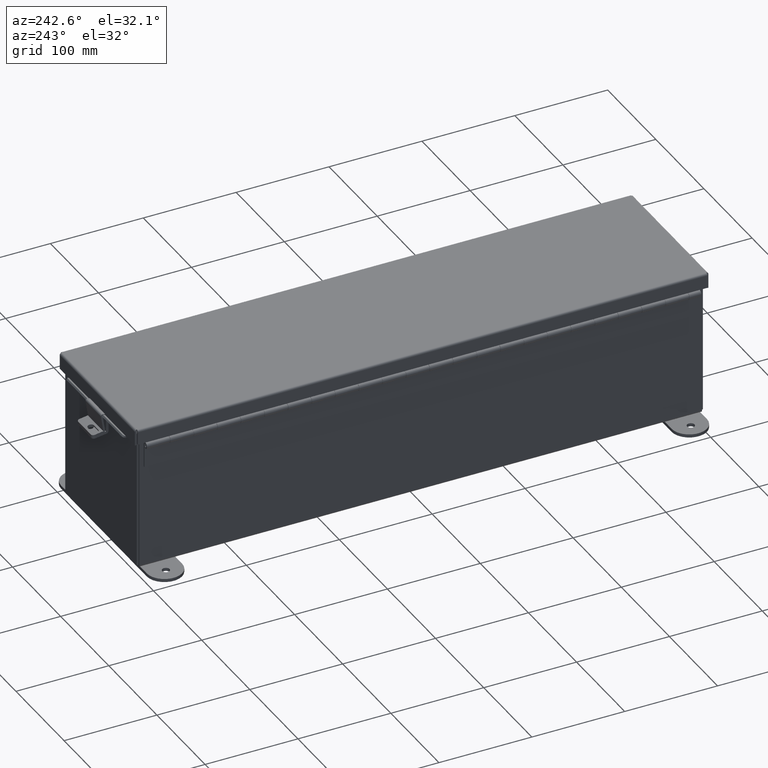
[diagram: clean part render]
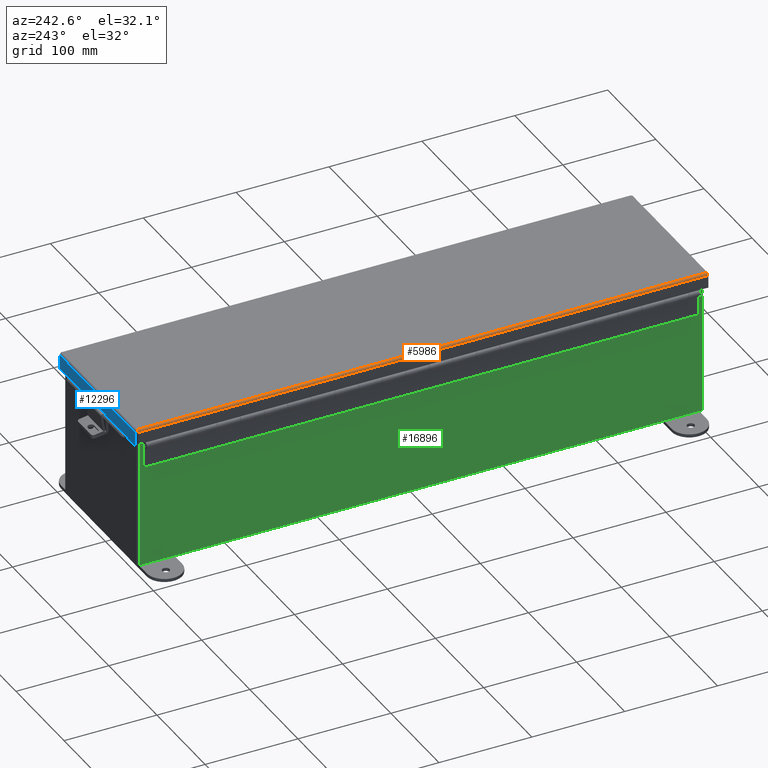
[diagram: same view with three faces highlighted in distinct colors, each labeled with its STEP entity id]
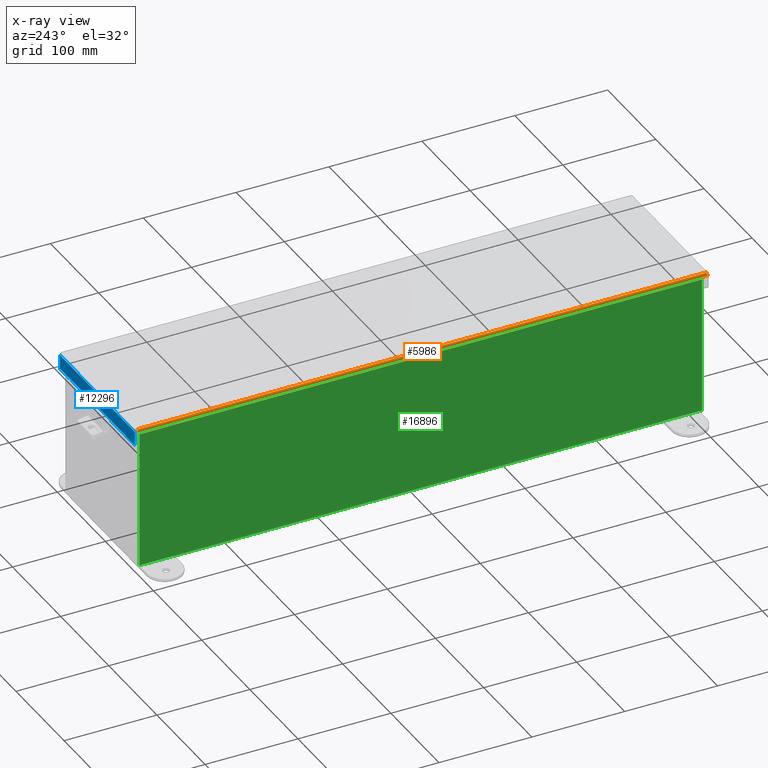
[diagram: x-ray of the same camera — body ghosted, the three highlighted faces saturated]
A machine part, auxiliary view with three faces highlighted in distinct colors.
The next image is the same camera in x-ray (body ghosted, the three faces saturated) — at least one of them is partly hidden behind the body in this view.
Their STEP definitions:

[orange] entity #5986 — the highlighted cylindrical surface (edge-blend (fillet) strip) has radius 2.2276 mm, axis along (0, 1, 0).
#235 = CARTESIAN_POINT ( 'NONE',  ( 3.156250000000021800, -12.07398485450581100, 0.001520096845005352400 ) ) ;
#604 = CARTESIAN_POINT ( 'NONE',  ( 3.156250000000021800, 12.07447893218811300, 0.01300000000000010700 ) ) ;
#890 = CARTESIAN_POINT ( 'NONE',  ( 3.112717384578551200, 12.07052631072935800, -0.06363106625866846200 ) ) ;
#1307 = VECTOR ( 'NONE', #6125, 39.37007874015748100 ) ;
#1649 = DIRECTION ( 'NONE',  ( 5.768659154690247000E-030, 1.000000000000000000, 2.085551018178050000E-029 ) ) ;
#2370 = VERTEX_POINT ( 'NONE', #604 ) ;
#2576 = CARTESIAN_POINT ( 'NONE',  ( 3.156250000000023100, 12.07398485450576900, 0.001520096845008739500 ) ) ;
#2650 = CARTESIAN_POINT ( 'NONE',  ( 3.080029903155014900, 12.06904407768232400, -0.07470000000000033600 ) ) ;
#2978 = CYLINDRICAL_SURFACE ( 'NONE', #19751, 0.08770000000000026400 ) ;
#3386 = DIRECTION ( 'NONE',  ( 1.000000000000000000, 0.0000000000000000000, -3.966747639032868000E-015 ) ) ;
#3682 = CARTESIAN_POINT ( 'NONE',  ( 3.080029903155014900, -12.06904407768236700, -0.07470000000000033600 ) ) ;
#4046 = FACE_OUTER_BOUND ( 'NONE', #17751, .T. ) ;
#4077 = ORIENTED_EDGE ( 'NONE', *, *, #7547, .F. ) ;
#4397 = CARTESIAN_POINT ( 'NONE',  ( 3.156250000000021800, -12.15625000000002100, 0.01299999999999901400 ) ) ;
#5574 = CARTESIAN_POINT ( 'NONE',  ( 3.068550000000011200, 12.06854999999997700, -0.07469999999999907300 ) ) ;
#5932 = CARTESIAN_POINT ( 'NONE',  ( 3.156250000000021800, -12.07447893218815500, 0.01300000000000010700 ) ) ;
#5986 = ADVANCED_FACE ( 'NONE', ( #4046 ), #2978, .T. ) ;
#6125 = DIRECTION ( 'NONE',  ( -5.845301833690820500E-030, -1.000000000000000000, -2.247278555201480100E-017 ) ) ;
#7148 = CARTESIAN_POINT ( 'NONE',  ( 3.112717384578548500, -12.07052631072940200, -0.06363106625866903100 ) ) ;
#7547 = EDGE_CURVE ( 'NONE', #2370, #19665, #21934, .T. ) ;
#8891 = CARTESIAN_POINT ( 'NONE',  ( 3.138680782078340200, -12.07200854377643400, -0.04089574734180119500 ) ) ;
#9173 = VERTEX_POINT ( 'NONE', #13062 ) ;
#9514 = CARTESIAN_POINT ( 'NONE',  ( 3.145181066258690100, 12.07250262145873300, -0.03116738457852710400 ) ) ;
#9720 = CARTESIAN_POINT ( 'NONE',  ( 3.068550000000011200, 12.07447893218811300, -0.07469999999999907300 ) ) ;
#10135 = VECTOR ( 'NONE', #20089, 39.37007874015748100 ) ;
#10514 = LINE ( 'NONE', #4397, #1307 ) ;
#10651 = CARTESIAN_POINT ( 'NONE',  ( 3.153967403743832300, -12.07349077682346600, -0.009955289458310636800 ) ) ;
#11264 = CARTESIAN_POINT ( 'NONE',  ( 3.122445747341822600, 12.07102038841170200, -0.05713078207832027200 ) ) ;
#12381 = CARTESIAN_POINT ( 'NONE',  ( 3.156250000000021800, -12.07447893218815500, 0.01300000000000010700 ) ) ;
#13010 = CARTESIAN_POINT ( 'NONE',  ( 3.091505289458331300, 12.06953815536466700, -0.07241740374381157300 ) ) ;
#13062 = CARTESIAN_POINT ( 'NONE',  ( 3.068550000000011700, -12.06855000000002100, -0.07470000000000015500 ) ) ;
#14501 = VERTEX_POINT ( 'NONE', #5932 ) ;
#14669 = CARTESIAN_POINT ( 'NONE',  ( 3.156250000000021800, 12.07447893218811300, 0.01300000000000010700 ) ) ;
#14742 = CARTESIAN_POINT ( 'NONE',  ( 3.068550000000011200, 12.06854999999997700, -0.07469999999999907300 ) ) ;
#15230 = ORIENTED_EDGE ( 'NONE', *, *, #20119, .F. ) ;
#15264 = ORIENTED_EDGE ( 'NONE', *, *, #20908, .T. ) ;
#16400 = EDGE_CURVE ( 'NONE', #19665, #9173, #19342, .T. ) ;
#17511 = CARTESIAN_POINT ( 'NONE',  ( 3.091505289458331300, -12.06953815536471500, -0.07241740374381168400 ) ) ;
#17751 = EDGE_LOOP ( 'NONE', ( #21998, #4077, #15264, #15230 ) ) ;
#19192 = CARTESIAN_POINT ( 'NONE',  ( 3.068550000000011700, -12.06855000000002100, -0.07470000000000015500 ) ) ;
#19266 = CARTESIAN_POINT ( 'NONE',  ( 3.122445747341821200, -12.07102038841174600, -0.05713078207832120200 ) ) ;
#19342 = LINE ( 'NONE', #9720, #10135 ) ;
#19665 = VERTEX_POINT ( 'NONE', #5574 ) ;
#19751 = AXIS2_PLACEMENT_3D ( 'NONE', #22391, #1649, #3386 ) ;
#19884 = CARTESIAN_POINT ( 'NONE',  ( 3.153967403743833700, 12.07349077682342500, -0.009955289458307653100 ) ) ;
#20089 = DIRECTION ( 'NONE',  ( -5.768659154690247000E-030, -1.000000000000000000, -2.085551018178049700E-029 ) ) ;
#20119 = EDGE_CURVE ( 'NONE', #9173, #14501, #20254, .T. ) ;
#20254 = B_SPLINE_CURVE_WITH_KNOTS ( 'NONE', 3,
 ( #19192, #3682, #17511, #7148, #19266, #8891, #21010, #10651, #235, #12381 ),
 .UNSPECIFIED., .F., .F.,
 ( 4, 2, 2, 2, 4 ),
 ( 0.0000000000000000000, 0.2500000000000000000, 0.5000000000000000000, 0.7500000000000000000, 1.000000000000000000 ),
 .UNSPECIFIED. ) ;
#20908 = EDGE_CURVE ( 'NONE', #2370, #14501, #10514, .T. ) ;
#21010 = CARTESIAN_POINT ( 'NONE',  ( 3.145181066258689700, -12.07250262145877800, -0.03116738457852925200 ) ) ;
#21630 = CARTESIAN_POINT ( 'NONE',  ( 3.138680782078343800, 12.07200854377638800, -0.04089574734179951500 ) ) ;
#21934 = B_SPLINE_CURVE_WITH_KNOTS ( 'NONE', 3,
 ( #14669, #2576, #19884, #9514, #21630, #11264, #890, #13010, #2650, #14742 ),
 .UNSPECIFIED., .F., .F.,
 ( 4, 2, 2, 2, 4 ),
 ( 0.0000000000000000000, 0.2499999999999998900, 0.4999999999999997800, 0.7499999999999998900, 1.000000000000000000 ),
 .UNSPECIFIED. ) ;
#21998 = ORIENTED_EDGE ( 'NONE', *, *, #16400, .F. ) ;
#22391 = CARTESIAN_POINT ( 'NONE',  ( 3.068550000000021400, 12.07447893218811300, 0.01300000000000010700 ) ) ;

[blue] entity #12296 — the highlighted planar face has unit normal (-0, -1, -0).
#263 = PLANE ( 'NONE',  #9715 ) ;
#473 = LINE ( 'NONE', #10496, #4558 ) ;
#661 = LINE ( 'NONE', #2677, #5274 ) ;
#916 = DIRECTION ( 'NONE',  ( 1.000000000000000000, 5.767251834364279800E-030, 1.081919997490687600E-017 ) ) ;
#1012 = CARTESIAN_POINT ( 'NONE',  ( -2.324478932188143200, 12.15624999999997700, 0.5967115427318815400 ) ) ;
#1226 = CARTESIAN_POINT ( 'NONE',  ( -3.074478932188137800, 12.15624999999998000, 0.6122999999999994000 ) ) ;
#1332 = LINE ( 'NONE', #16548, #9443 ) ;
#1414 = CARTESIAN_POINT ( 'NONE',  ( 2.324478932188144900, 12.15624999999998000, 0.6122999999999994000 ) ) ;
#1858 = EDGE_CURVE ( 'NONE', #6198, #16233, #4201, .T. ) ;
#2057 = DIRECTION ( 'NONE',  ( -1.577721810442017300E-030, -3.569293475308533200E-015, -1.000000000000000000 ) ) ;
#2396 = CARTESIAN_POINT ( 'NONE',  ( -3.074478932188132500, 12.15624999999997700, 0.01300000000000010700 ) ) ;
#2677 = CARTESIAN_POINT ( 'NONE',  ( 2.324478932188144900, 12.15624999999998000, 0.6123000000000005100 ) ) ;
#2755 = LINE ( 'NONE', #9807, #11401 ) ;
#3476 = EDGE_CURVE ( 'NONE', #20969, #15159, #15006, .T. ) ;
#3900 = CARTESIAN_POINT ( 'NONE',  ( 3.156250000000020900, 12.15624999999997700, 0.01300000000000010700 ) ) ;
#4201 = LINE ( 'NONE', #12567, #4754 ) ;
#4493 = DIRECTION ( 'NONE',  ( 1.577721810442017300E-030, 1.401985044024248200E-013, 1.000000000000000000 ) ) ;
#4528 = DIRECTION ( 'NONE',  ( -1.000000000000000000, -5.768659154690151100E-030, 1.577721810442017300E-030 ) ) ;
#4558 = VECTOR ( 'NONE', #7065, 39.37007874015748100 ) ;
#4574 = VECTOR ( 'NONE', #5627, 39.37007874015748100 ) ;
#4754 = VECTOR ( 'NONE', #8090, 39.37007874015748100 ) ;
#5274 = VECTOR ( 'NONE', #14778, 39.37007874015748100 ) ;
#5627 = DIRECTION ( 'NONE',  ( 1.000000000000000000, 5.719355348113837800E-030, -1.577721810442017300E-030 ) ) ;
#6198 = VERTEX_POINT ( 'NONE', #21163 ) ;
#6733 = FACE_OUTER_BOUND ( 'NONE', #20697, .T. ) ;
#6941 = LINE ( 'NONE', #11290, #17228 ) ;
#7065 = DIRECTION ( 'NONE',  ( 1.577721810442017300E-030, 3.569293475308533200E-015, 1.000000000000000000 ) ) ;
#7669 = CARTESIAN_POINT ( 'NONE',  ( -2.324478932188146700, 12.15624999999998000, 0.6123000000000005100 ) ) ;
#8090 = DIRECTION ( 'NONE',  ( 1.577721810442017300E-030, 3.569293475308533200E-015, 1.000000000000000000 ) ) ;
#8322 = ORIENTED_EDGE ( 'NONE', *, *, #12596, .F. ) ;
#8887 = VERTEX_POINT ( 'NONE', #1414 ) ;
#9443 = VECTOR ( 'NONE', #4528, 39.37007874015748100 ) ;
#9715 = AXIS2_PLACEMENT_3D ( 'NONE', #19296, #12402, #2057 ) ;
#9807 = CARTESIAN_POINT ( 'NONE',  ( -6.402768735150616900E-018, 12.15624999999998000, 0.6122999999999994000 ) ) ;
#10496 = CARTESIAN_POINT ( 'NONE',  ( -3.074478932188133000, 12.15624999999997700, -4.370956789862821100E-014 ) ) ;
#11290 = CARTESIAN_POINT ( 'NONE',  ( -6.402768735150616900E-018, 12.15624999999998000, 0.6122999999999994000 ) ) ;
#11341 = EDGE_CURVE ( 'NONE', #17108, #15159, #2755, .T. ) ;
#11401 = VECTOR ( 'NONE', #13285, 39.37007874015748100 ) ;
#11404 = ORIENTED_EDGE ( 'NONE', *, *, #11341, .T. ) ;
#12069 = CARTESIAN_POINT ( 'NONE',  ( 2.324478932188147600, 12.15624999999998000, 0.5967115427318815400 ) ) ;
#12296 = ADVANCED_FACE ( 'NONE', ( #6733 ), #263, .F. ) ;
#12402 = DIRECTION ( 'NONE',  ( -5.798395978055771900E-030, -1.000000000000000000, 3.569293475308533200E-015 ) ) ;
#12567 = CARTESIAN_POINT ( 'NONE',  ( 3.074478932188157400, 12.15624999999997700, 0.0000000000000000000 ) ) ;
#12596 = EDGE_CURVE ( 'NONE', #16603, #20969, #1332, .T. ) ;
#12907 = EDGE_CURVE ( 'NONE', #18112, #17108, #473, .T. ) ;
#13285 = DIRECTION ( 'NONE',  ( 1.000000000000000000, 5.767251834364279800E-030, 1.081919997490687600E-017 ) ) ;
#13967 = EDGE_CURVE ( 'NONE', #8887, #16233, #6941, .T. ) ;
#14613 = ORIENTED_EDGE ( 'NONE', *, *, #12907, .T. ) ;
#14778 = DIRECTION ( 'NONE',  ( 1.752481305030332700E-014, -1.401985044024260600E-013, -1.000000000000000000 ) ) ;
#15006 = LINE ( 'NONE', #1012, #19060 ) ;
#15159 = VERTEX_POINT ( 'NONE', #7669 ) ;
#15749 = ORIENTED_EDGE ( 'NONE', *, *, #13967, .T. ) ;
#16148 = CARTESIAN_POINT ( 'NONE',  ( 3.074478932188152500, 12.15624999999998000, 0.6123000000000005100 ) ) ;
#16233 = VERTEX_POINT ( 'NONE', #16148 ) ;
#16548 = CARTESIAN_POINT ( 'NONE',  ( 2.324478932188147600, 12.15624999999997700, 0.5967115427318815400 ) ) ;
#16603 = VERTEX_POINT ( 'NONE', #12069 ) ;
#16986 = EDGE_CURVE ( 'NONE', #8887, #16603, #661, .T. ) ;
#17108 = VERTEX_POINT ( 'NONE', #1226 ) ;
#17228 = VECTOR ( 'NONE', #916, 39.37007874015748100 ) ;
#18112 = VERTEX_POINT ( 'NONE', #2396 ) ;
#18361 = LINE ( 'NONE', #3900, #4574 ) ;
#19060 = VECTOR ( 'NONE', #4493, 39.37007874015748100 ) ;
#19178 = ORIENTED_EDGE ( 'NONE', *, *, #22475, .F. ) ;
#19296 = CARTESIAN_POINT ( 'NONE',  ( 0.0000000000000000000, 12.15624999999997700, -4.370956789862821100E-014 ) ) ;
#20059 = CARTESIAN_POINT ( 'NONE',  ( -2.324478932188143200, 12.15624999999998000, 0.5967115427318815400 ) ) ;
#20634 = ORIENTED_EDGE ( 'NONE', *, *, #1858, .F. ) ;
#20697 = EDGE_LOOP ( 'NONE', ( #21963, #15749, #20634, #19178, #14613, #11404, #21257, #8322 ) ) ;
#20969 = VERTEX_POINT ( 'NONE', #20059 ) ;
#21163 = CARTESIAN_POINT ( 'NONE',  ( 3.074478932188157400, 12.15624999999997700, 0.01300000000000010700 ) ) ;
#21257 = ORIENTED_EDGE ( 'NONE', *, *, #3476, .F. ) ;
#21963 = ORIENTED_EDGE ( 'NONE', *, *, #16986, .F. ) ;
#22475 = EDGE_CURVE ( 'NONE', #18112, #6198, #18361, .T. ) ;

[green] entity #16896 — the highlighted planar face has unit normal (1, 0, 0).
#74 = ORIENTED_EDGE ( 'NONE', *, *, #8805, .T. ) ;
#389 = DIRECTION ( 'NONE',  ( -2.374631997337943600E-031, 1.000000000000000000, 6.872400678383597100E-017 ) ) ;
#688 = PLANE ( 'NONE',  #14779 ) ;
#933 = ORIENTED_EDGE ( 'NONE', *, *, #18045, .F. ) ;
#1311 = VERTEX_POINT ( 'NONE', #13166 ) ;
#1609 = VERTEX_POINT ( 'NONE', #7179 ) ;
#1876 = LINE ( 'NONE', #19963, #6455 ) ;
#1988 = LINE ( 'NONE', #12518, #19852 ) ;
#2544 = LINE ( 'NONE', #15920, #15783 ) ;
#3624 = LINE ( 'NONE', #13295, #13382 ) ;
#5890 = DIRECTION ( 'NONE',  ( 1.000000000000000000, 0.0000000000000000000, 3.455316574900958600E-015 ) ) ;
#6455 = VECTOR ( 'NONE', #21716, 39.37007874015748100 ) ;
#6984 = VERTEX_POINT ( 'NONE', #11218 ) ;
#7071 = ORIENTED_EDGE ( 'NONE', *, *, #12516, .T. ) ;
#7179 = CARTESIAN_POINT ( 'NONE',  ( -3.000000000000000900, -11.92529999999999600, 0.01299999999999820400 ) ) ;
#8805 = EDGE_CURVE ( 'NONE', #6984, #1311, #3624, .T. ) ;
#10603 = VERTEX_POINT ( 'NONE', #21415 ) ;
#10976 = FACE_OUTER_BOUND ( 'NONE', #20959, .T. ) ;
#11218 = CARTESIAN_POINT ( 'NONE',  ( -3.000000000000020900, 11.92529999999999600, 5.837599999999999200 ) ) ;
#11483 = DIRECTION ( 'NONE',  ( 3.455316574900958600E-015, 0.0000000000000000000, -1.000000000000000000 ) ) ;
#12516 = EDGE_CURVE ( 'NONE', #1609, #10603, #1876, .T. ) ;
#12518 = CARTESIAN_POINT ( 'NONE',  ( -3.000000000000000900, 11.92529999999999600, 0.01299999999999984300 ) ) ;
#13166 = CARTESIAN_POINT ( 'NONE',  ( -3.000000000000000900, 11.92529999999999600, 0.01300000000000001300 ) ) ;
#13295 = CARTESIAN_POINT ( 'NONE',  ( -3.000000000000000900, 11.92529999999999600, -1.062859610035002400E-014 ) ) ;
#13382 = VECTOR ( 'NONE', #11483, 39.37007874015748100 ) ;
#14779 = AXIS2_PLACEMENT_3D ( 'NONE', #16278, #5890, #18006 ) ;
#15783 = VECTOR ( 'NONE', #17659, 39.37007874015748100 ) ;
#15920 = CARTESIAN_POINT ( 'NONE',  ( -3.000000000000020900, -11.92529999999999600, 5.837599999999999200 ) ) ;
#16278 = CARTESIAN_POINT ( 'NONE',  ( -3.000000000000000900, 0.0000000000000000000, -1.062859610035002400E-014 ) ) ;
#16896 = ADVANCED_FACE ( 'NONE', ( #10976 ), #688, .F. ) ;
#17659 = DIRECTION ( 'NONE',  ( 0.0000000000000000000, 1.000000000000000000, 0.0000000000000000000 ) ) ;
#18006 = DIRECTION ( 'NONE',  ( 3.455316574900958600E-015, 0.0000000000000000000, -1.000000000000000000 ) ) ;
#18011 = EDGE_CURVE ( 'NONE', #10603, #6984, #2544, .T. ) ;
#18045 = EDGE_CURVE ( 'NONE', #1609, #1311, #1988, .T. ) ;
#18566 = ORIENTED_EDGE ( 'NONE', *, *, #18011, .T. ) ;
#19852 = VECTOR ( 'NONE', #389, 39.37007874015748100 ) ;
#19963 = CARTESIAN_POINT ( 'NONE',  ( -3.000000000000000900, -11.92530000000000000, -6.172269060685194900E-015 ) ) ;
#20959 = EDGE_LOOP ( 'NONE', ( #18566, #74, #933, #7071 ) ) ;
#21415 = CARTESIAN_POINT ( 'NONE',  ( -3.000000000000020900, -11.92529999999999500, 5.837599999999999200 ) ) ;
#21716 = DIRECTION ( 'NONE',  ( -3.455316574900958600E-015, 3.735477378271307500E-016, 1.000000000000000000 ) ) ;